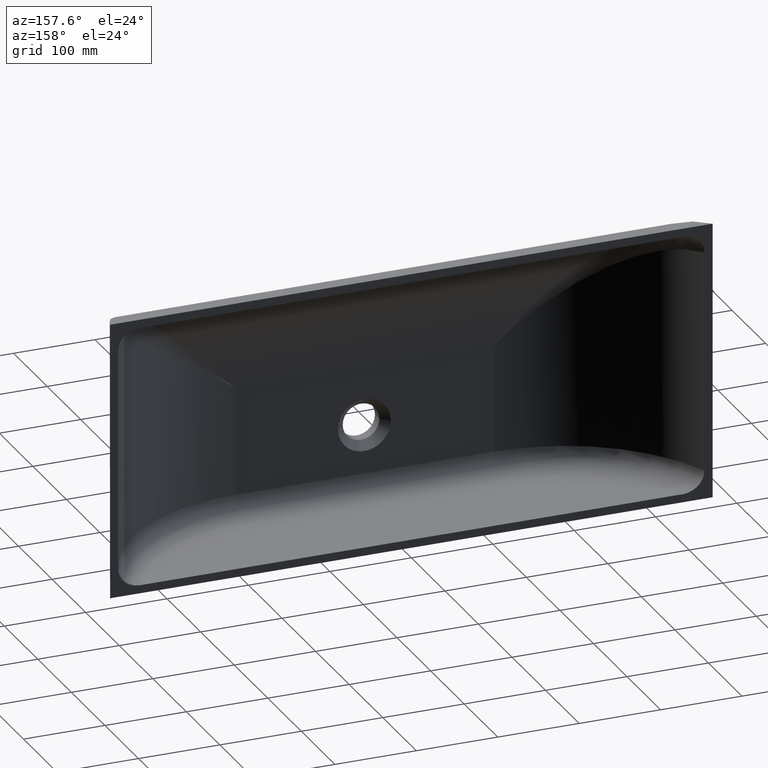
[diagram: clean part render]
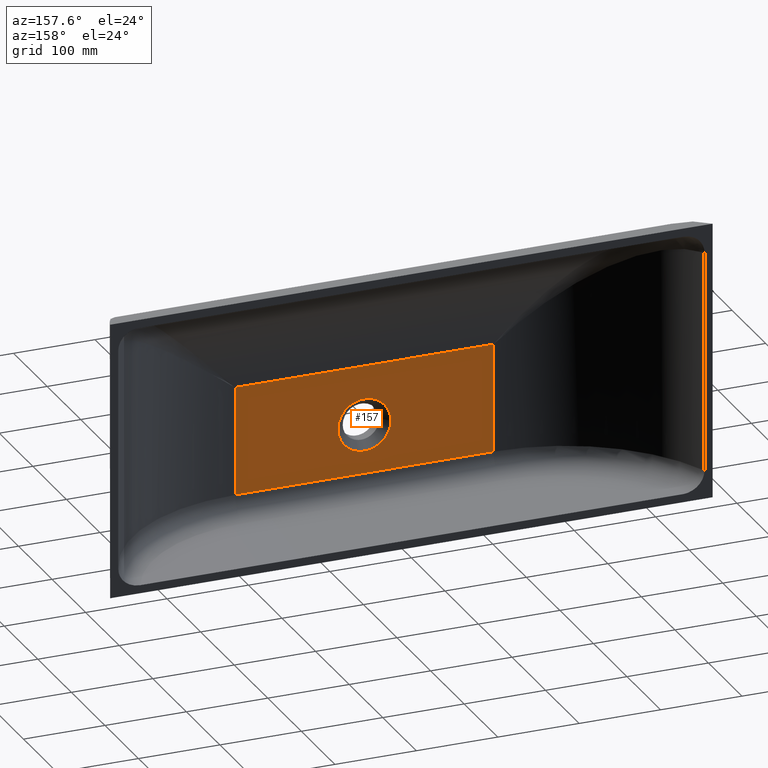
[diagram: same view with one face highlighted and labeled with its STEP entity id]
A machine part, auxiliary view. The second image highlights one B-rep face of the part: STEP entity #157.
In plain terms, the highlighted planar face has unit normal (-0, 1, 0).
Its self-contained STEP definition (entity closure, byte-faithful):
#20 = AXIS2_PLACEMENT_3D ( 'NONE', #1246, #238, #687 ) ;
#33 = LINE ( 'NONE', #484, #831 ) ;
#45 = CARTESIAN_POINT ( 'NONE',  ( -158.6406308044475111, -140.0000000000000000, -60.00000000000000000 ) ) ;
#51 = VERTEX_POINT ( 'NONE', #1094 ) ;
#65 = EDGE_CURVE ( 'NONE', #991, #336, #1130, .T. ) ;
#108 = CARTESIAN_POINT ( 'NONE',  ( 158.6406308044475111, -140.0000000000000000, -94.99999999999997158 ) ) ;
#114 = VECTOR ( 'NONE', #559, 1000.000000000000000 ) ;
#157 = ADVANCED_FACE ( 'NONE', ( #1347, #344 ), #799, .T. ) ;
#197 = CARTESIAN_POINT ( 'NONE',  ( -5.462297281155770179E-11, -140.0000000000000000, 5.484501741648273310E-11 ) ) ;
#238 = DIRECTION ( 'NONE',  ( -1.861033808554953347E-16, 1.000000000000000000, 0.0000000000000000000 ) ) ;
#248 = DIRECTION ( 'NONE',  ( -1.000000000000000000, -1.861033808554953347E-16, -0.0000000000000000000 ) ) ;
#278 = EDGE_CURVE ( 'NONE', #1070, #1124, #614, .T. ) ;
#336 = VERTEX_POINT ( 'NONE', #889 ) ;
#344 = FACE_OUTER_BOUND ( 'NONE', #508, .T. ) ;
#351 = EDGE_LOOP ( 'NONE', ( #567, #504 ) ) ;
#358 = CARTESIAN_POINT ( 'NONE',  ( 500000.0000000000582, -139.9999999999999147, 73.44411091323188145 ) ) ;
#367 = DIRECTION ( 'NONE',  ( 1.861033808554953347E-16, -1.000000000000000000, -0.0000000000000000000 ) ) ;
#390 = EDGE_CURVE ( 'NONE', #1442, #51, #33, .T. ) ;
#429 = EDGE_CURVE ( 'NONE', #336, #51, #1362, .T. ) ;
#470 = EDGE_CURVE ( 'NONE', #1124, #1070, #1044, .T. ) ;
#484 = CARTESIAN_POINT ( 'NONE',  ( -158.6406308044475111, -140.0000000000000000, -94.99999999999997158 ) ) ;
#504 = ORIENTED_EDGE ( 'NONE', *, *, #470, .T. ) ;
#508 = EDGE_LOOP ( 'NONE', ( #1226, #1306, #757, #1079 ) ) ;
#559 = DIRECTION ( 'NONE',  ( 0.0000000000000000000, 0.0000000000000000000, 1.000000000000000000 ) ) ;
#567 = ORIENTED_EDGE ( 'NONE', *, *, #278, .T. ) ;
#614 = CIRCLE ( 'NONE', #673, 32.49999999999875655 ) ;
#646 = DIRECTION ( 'NONE',  ( 1.861033808554953347E-16, -1.000000000000000000, -0.0000000000000000000 ) ) ;
#673 = AXIS2_PLACEMENT_3D ( 'NONE', #197, #646, #1107 ) ;
#687 = DIRECTION ( 'NONE',  ( -1.000000000000000000, -1.861033808554953347E-16, 0.0000000000000000000 ) ) ;
#757 = ORIENTED_EDGE ( 'NONE', *, *, #390, .T. ) ;
#767 = EDGE_CURVE ( 'NONE', #991, #1442, #812, .T. ) ;
#799 = PLANE ( 'NONE',  #20 ) ;
#812 = LINE ( 'NONE', #1254, #841 ) ;
#816 = DIRECTION ( 'NONE',  ( -1.000000000000000000, -0.0000000000000000000, -0.0000000000000000000 ) ) ;
#825 = DIRECTION ( 'NONE',  ( -1.000000000000000000, 0.0000000000000000000, 0.0000000000000000000 ) ) ;
#831 = VECTOR ( 'NONE', #940, 1000.000000000000000 ) ;
#841 = VECTOR ( 'NONE', #248, 1000.000000000000000 ) ;
#878 = CARTESIAN_POINT ( 'NONE',  ( -32.50000000005331913, -140.0000000000000000, 5.485670397465810276E-11 ) ) ;
#888 = VECTOR ( 'NONE', #816, 1000.000000000000000 ) ;
#889 = CARTESIAN_POINT ( 'NONE',  ( 158.6406308046548475, -139.9999999999999147, 73.44411091323188145 ) ) ;
#940 = DIRECTION ( 'NONE',  ( 0.0000000000000000000, 0.0000000000000000000, 1.000000000000000000 ) ) ;
#970 = CARTESIAN_POINT ( 'NONE',  ( 158.6406308044475111, -140.0000000000000000, -60.00000000000000000 ) ) ;
#991 = VERTEX_POINT ( 'NONE', #970 ) ;
#1044 = CIRCLE ( 'NONE', #1072, 32.49999999999875655 ) ;
#1070 = VERTEX_POINT ( 'NONE', #878 ) ;
#1072 = AXIS2_PLACEMENT_3D ( 'NONE', #1370, #367, #825 ) ;
#1079 = ORIENTED_EDGE ( 'NONE', *, *, #429, .F. ) ;
#1094 = CARTESIAN_POINT ( 'NONE',  ( -158.6406308045411606, -139.9999999999999147, 73.44411091323188145 ) ) ;
#1107 = DIRECTION ( 'NONE',  ( -1.000000000000000000, 0.0000000000000000000, 0.0000000000000000000 ) ) ;
#1124 = VERTEX_POINT ( 'NONE', #1349 ) ;
#1130 = LINE ( 'NONE', #108, #114 ) ;
#1226 = ORIENTED_EDGE ( 'NONE', *, *, #65, .F. ) ;
#1246 = CARTESIAN_POINT ( 'NONE',  ( -158.6406308044474827, -140.0000000000000000, -94.99999999999997158 ) ) ;
#1254 = CARTESIAN_POINT ( 'NONE',  ( -158.6406308044474827, -140.0000000000000000, -60.00000000000000000 ) ) ;
#1306 = ORIENTED_EDGE ( 'NONE', *, *, #767, .T. ) ;
#1347 = FACE_BOUND ( 'NONE', #351, .T. ) ;
#1349 = CARTESIAN_POINT ( 'NONE',  ( 32.49999999992088817, -140.0000000000000000, 5.486068407674703774E-11 ) ) ;
#1362 = LINE ( 'NONE', #358, #888 ) ;
#1370 = CARTESIAN_POINT ( 'NONE',  ( -5.462297281155770179E-11, -140.0000000000000000, 5.484501741648273310E-11 ) ) ;
#1442 = VERTEX_POINT ( 'NONE', #45 ) ;